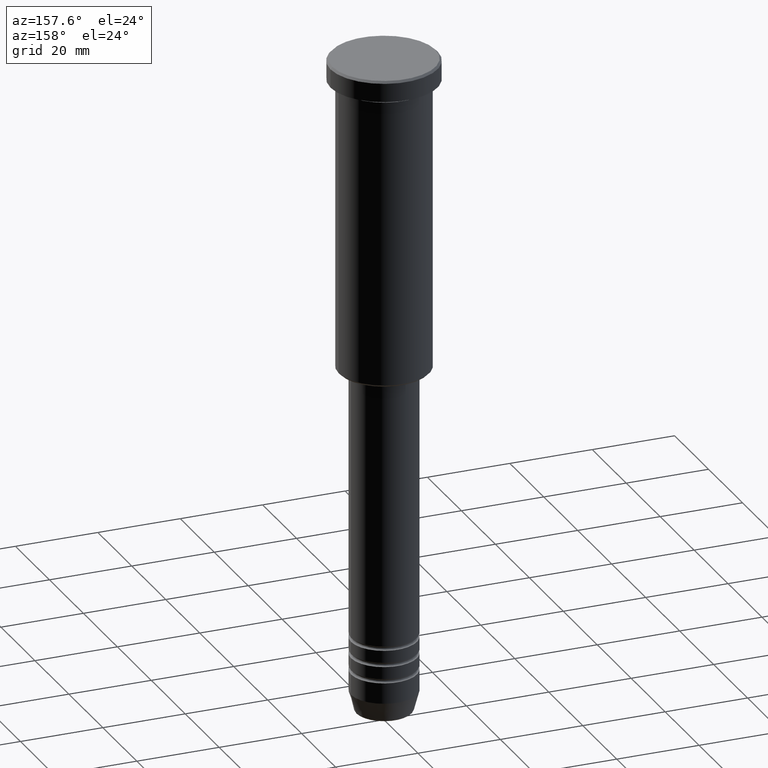
[diagram: clean part render]
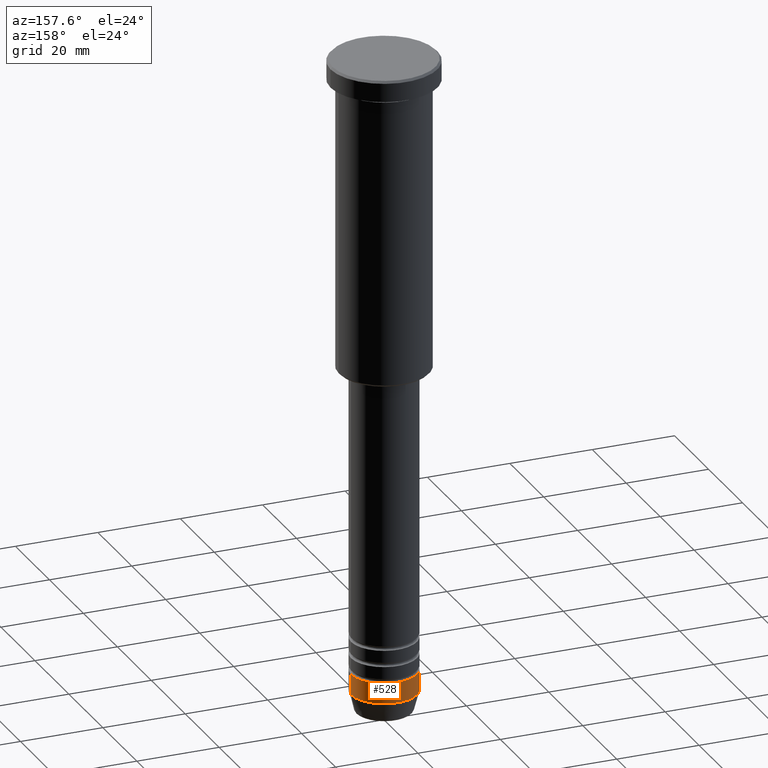
[diagram: same view with one face highlighted and labeled with its STEP entity id]
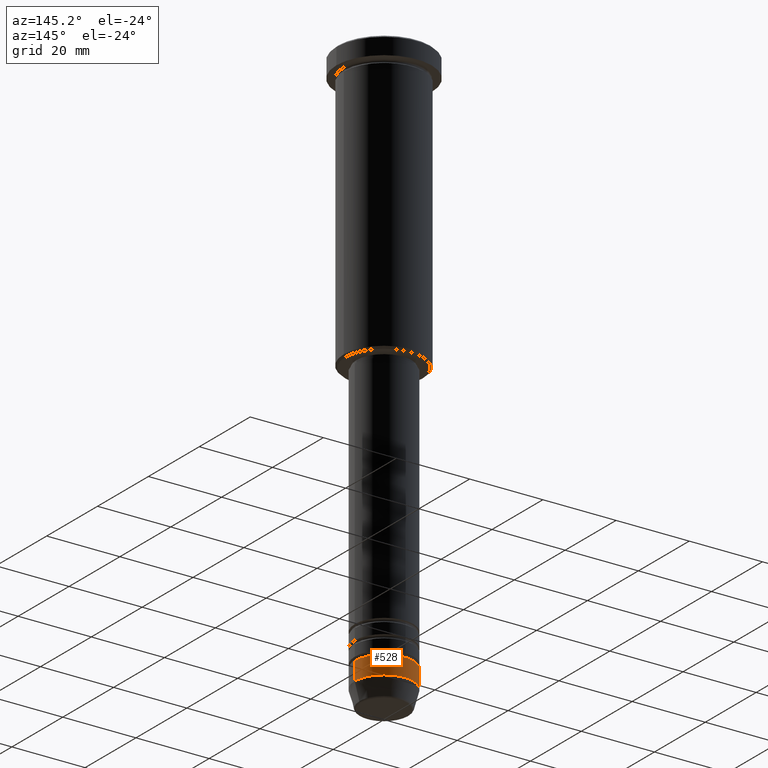
[diagram: same view with one face highlighted and labeled with its STEP entity id]
A machine part, auxiliary view. The second image highlights one B-rep face of the part: STEP entity #528.
A second angle (auxiliary view) of the same face is appended — the face is thin or edge-on in the first view.
In plain terms, the highlighted cylindrical surface (edge-blend (fillet) strip) has radius 8 mm, axis along (-0, -0, 1).
Its self-contained STEP definition (entity closure, byte-faithful):
#2 = DIRECTION ( 'NONE',  ( 1.000000000000000000, 0.000000000000000000, 0.000000000000000000 ) ) ;
#16 = CARTESIAN_POINT ( 'NONE',  ( 8.000000000000000000, 0.000000000000000000, -155.0000000000000000 ) ) ;
#32 = ORIENTED_EDGE ( 'NONE', *, *, #1101, .F. ) ;
#44 = CARTESIAN_POINT ( 'NONE',  ( 8.000000000000000000, 0.000000000000000000, -150.0000000000000000 ) ) ;
#48 = ORIENTED_EDGE ( 'NONE', *, *, #1121, .T. ) ;
#50 = DIRECTION ( 'NONE',  ( -0.000000000000000000, -0.000000000000000000, 1.000000000000000000 ) ) ;
#51 = VERTEX_POINT ( 'NONE', #16 ) ;
#106 = VERTEX_POINT ( 'NONE', #538 ) ;
#114 = CARTESIAN_POINT ( 'NONE',  ( 0.000000000000000000, 0.000000000000000000, -150.0000000000000000 ) ) ;
#127 = LINE ( 'NONE', #249, #161 ) ;
#161 = VECTOR ( 'NONE', #50, 1000.000000000000000 ) ;
#205 = AXIS2_PLACEMENT_3D ( 'NONE', #291, #550, #209 ) ;
#209 = DIRECTION ( 'NONE',  ( 1.000000000000000000, 0.000000000000000000, 0.000000000000000000 ) ) ;
#249 = CARTESIAN_POINT ( 'NONE',  ( -8.000000000000000000, 9.797174393178825657E-16, 0.000000000000000000 ) ) ;
#281 = AXIS2_PLACEMENT_3D ( 'NONE', #329, #895, #367 ) ;
#291 = CARTESIAN_POINT ( 'NONE',  ( 0.000000000000000000, 0.000000000000000000, -155.0000000000000000 ) ) ;
#329 = CARTESIAN_POINT ( 'NONE',  ( 0.000000000000000000, 0.000000000000000000, 0.000000000000000000 ) ) ;
#367 = DIRECTION ( 'NONE',  ( 1.000000000000000000, 0.000000000000000000, 0.000000000000000000 ) ) ;
#431 = VERTEX_POINT ( 'NONE', #1051 ) ;
#465 = DIRECTION ( 'NONE',  ( -0.000000000000000000, -0.000000000000000000, 1.000000000000000000 ) ) ;
#471 = LINE ( 'NONE', #1105, #1094 ) ;
#528 = ADVANCED_FACE ( 'NONE', ( #694 ), #945, .T. ) ;
#538 = CARTESIAN_POINT ( 'NONE',  ( -8.000000000000000000, 9.797174393178825657E-16, -150.0000000000000000 ) ) ;
#550 = DIRECTION ( 'NONE',  ( -0.000000000000000000, -0.000000000000000000, 1.000000000000000000 ) ) ;
#555 = DIRECTION ( 'NONE',  ( -0.000000000000000000, -0.000000000000000000, 1.000000000000000000 ) ) ;
#629 = ORIENTED_EDGE ( 'NONE', *, *, #800, .T. ) ;
#675 = CIRCLE ( 'NONE', #1073, 8.000000000000000000 ) ;
#694 = FACE_OUTER_BOUND ( 'NONE', #731, .T. ) ;
#731 = EDGE_LOOP ( 'NONE', ( #48, #629, #32, #931 ) ) ;
#800 = EDGE_CURVE ( 'NONE', #431, #106, #127, .T. ) ;
#808 = VERTEX_POINT ( 'NONE', #44 ) ;
#895 = DIRECTION ( 'NONE',  ( -0.000000000000000000, -0.000000000000000000, 1.000000000000000000 ) ) ;
#931 = ORIENTED_EDGE ( 'NONE', *, *, #1128, .F. ) ;
#945 = CYLINDRICAL_SURFACE ( 'NONE', #281, 8.000000000000000000 ) ;
#1022 = CIRCLE ( 'NONE', #205, 8.000000000000000000 ) ;
#1051 = CARTESIAN_POINT ( 'NONE',  ( -8.000000000000000000, 9.797174393178825657E-16, -155.0000000000000000 ) ) ;
#1073 = AXIS2_PLACEMENT_3D ( 'NONE', #114, #465, #2 ) ;
#1094 = VECTOR ( 'NONE', #555, 1000.000000000000000 ) ;
#1101 = EDGE_CURVE ( 'NONE', #808, #106, #675, .T. ) ;
#1105 = CARTESIAN_POINT ( 'NONE',  ( 8.000000000000000000, 0.000000000000000000, 0.000000000000000000 ) ) ;
#1121 = EDGE_CURVE ( 'NONE', #51, #431, #1022, .T. ) ;
#1128 = EDGE_CURVE ( 'NONE', #51, #808, #471, .T. ) ;